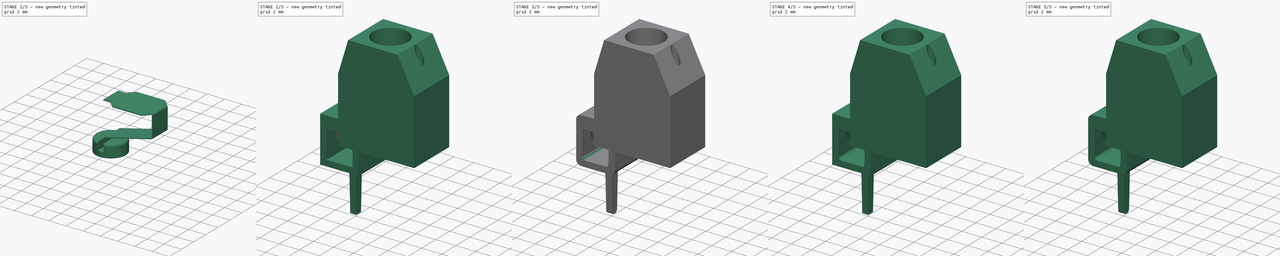
[diagram: build sequence overview — one tinted view per stage of 5, left to right]
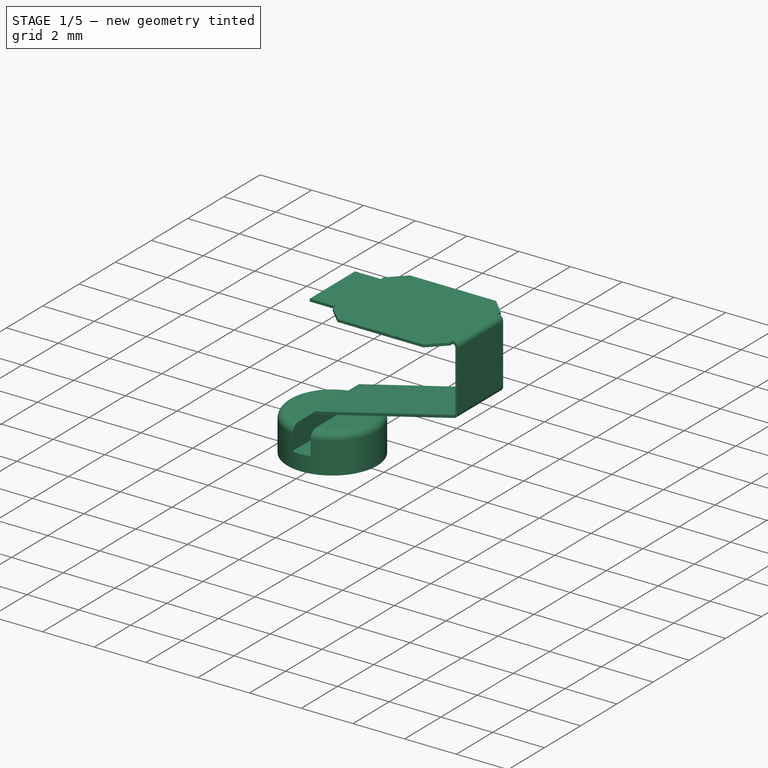
[diagram: stage 1 of 5 — iso view after this stage's code; geometry added in this stage tinted green]
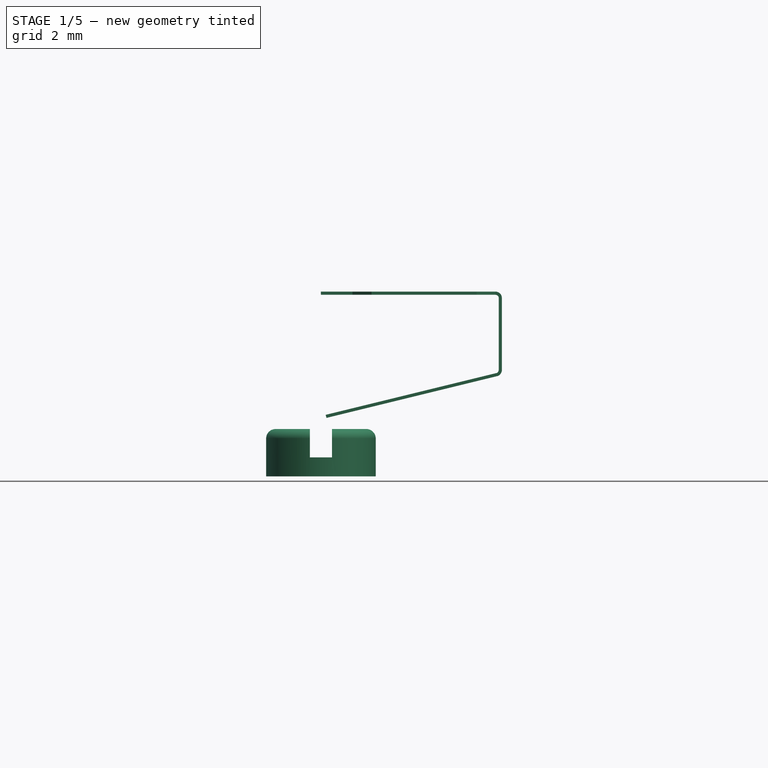
[diagram: stage 1 of 5 — front view after this stage's code; geometry added in this stage tinted green]
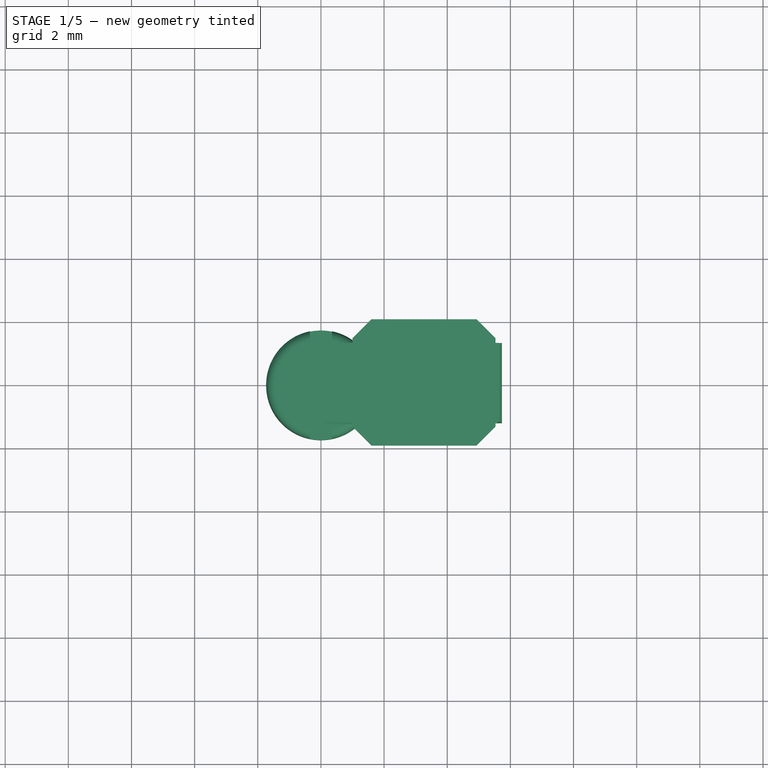
[diagram: stage 1 of 5 — top view after this stage's code; geometry added in this stage tinted green]
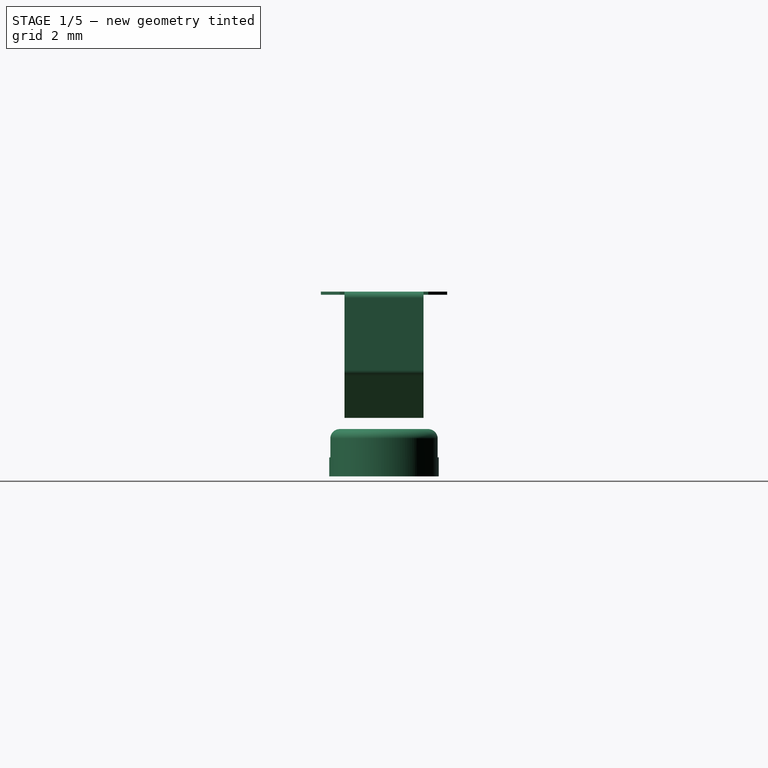
[diagram: stage 1 of 5 — right view after this stage's code; geometry added in this stage tinted green]
FCSTD DOCUMENT  (FreeCAD 0.18.4R)
Label: terminal block 2 pin
License: All rights reserved
LicenseURL: http://en.wikipedia.org/wiki/All_rights_reserved
objects: Sketcher::SketchObject×18, PartDesign::Pad×8, PartDesign::Pocket×8, PartDesign::Fillet×8, PartDesign::Body×6, Part::FeaturePython×6, App::Part×5, PartDesign::Draft×2, Part::Chamfer×2
note: 74 computed .brp shape members not serialized (recipe doc carries the construction recipe); baked Part::Feature solids carry a one-line shape summary decoded from their .brp

FEATURE [PartDesign::Body] Body005  label="Leg001"
  Group = -> [Sketch015,Pad004,Sketch018,Pad005,Draft001,Fillet004,Fillet005,Fillet006]
  Origin = -> Origin008
  Placement = pos=(3.2,-1e-15,3.3) rot=(0,0,-1;1.5708rad)
  Tip = -> Fillet006
FEATURE [Part::FeaturePython] BaseBend001  label="Spring002"  # WARN: FeaturePython — macro-defined, semantics opaque (R4)
  BendSide = 2
  BendSketch = -> Sketch012
  Placement = pos=(0,-1.25,5.8) rot=(0,0,1;0rad)
  length = 2.5
  radius = 0.1
  thickness = 0.1
FEATURE [Part::FeaturePython] Extend003  # WARN: FeaturePython — macro-defined, semantics opaque (R4)
  baseObject = -> BaseBend001 [Edge42]
  gap1 = 1
  gap2 = 0
  length = 0.75
FEATURE [Part::FeaturePython] Extend002  # WARN: FeaturePython — macro-defined, semantics opaque (R4)
  baseObject = -> Extend003 [Edge21]
  gap1 = 1
  gap2 = 0
  length = 0.75
FEATURE [Part::Chamfer] Chamfer001
  Base = -> Extend002
  Edges = 4 edges r=0.6: [Edge2,Edge8,Edge39,Edge45]
FEATURE [App::Part] Part004
  Group = -> [Sketch012,BaseBend001,Extend003,Extend002,Chamfer001]
  Origin = -> Origin011
  Placement = pos=(6,-7e-16,0) rot=(0,0,1;3.14159rad)
FEATURE [PartDesign::Pad] Pad007
  Length = 1.5
  Length2 = 100
  Profile = -> Sketch016
  Refine = true
  Type = 0
FEATURE [Sketcher::SketchObject] Sketch017
  MapMode = 5
  Placement = pos=(0,0,1.5) rot=(0,0,1;0rad)
  Support = -> [Pad007]
  sketch-geometry (4):
    g0: LineSegment StartX=-0.35 StartY=2 StartZ=0 EndX=0.35 EndY=2 EndZ=0
    g1: LineSegment StartX=0.35 StartY=2 StartZ=0 EndX=0.35 EndY=-2 EndZ=0
    g2: LineSegment StartX=0.35 StartY=-2 StartZ=0 EndX=-0.35 EndY=-2 EndZ=0
    g3: LineSegment StartX=-0.35 StartY=-2 StartZ=0 EndX=-0.35 EndY=2 EndZ=0
  constraints (11):
    c: Coincident(g0,g1)
    c: Coincident(g1,g2)
    c: Coincident(g2,g3)
    c: Coincident(g3,g0)
    c: Horizontal(g0)
    c: Horizontal(g2)
    c: Vertical(g1)
    c: Vertical(g3)
    c: Symmetric(g1,g0,g-1)
    c: DistanceX(g0,g0) = 0.7
    c: DistanceY(g1,g1) = 4
FEATURE [PartDesign::Pocket] Pocket007
  BaseFeature = -> Pad007
  Length = 0.9
  Length2 = 100
  Profile = -> Sketch017
  Refine = true
  Type = 0
FEATURE [PartDesign::Fillet] Fillet007
  Base = -> Pocket007 [Edge3,Edge7]
  BaseFeature = -> Pocket007
  Radius = 0.3
FEATURE [PartDesign::Body] Body006  label="Cap001"
  Group = -> [Sketch016,Pad007,Sketch017,Pocket007,Fillet007]
  Origin = -> Origin010
  Placement = pos=(3.47752,0,6.9297) rot=(0,0,1;0rad)
  Tip = -> Fillet007
FEATURE [App::Part] Part003  label="Teminal Block 1 pin001"
  Group = -> [Body004,Body005,Body006,Part004]
  Origin = -> Origin007
  Placement = pos=(1e-15,5,0) rot=(0,0,1;3.14159rad)
FEATURE [App::Part] Part002  label="Terminal block 2 pin"
  Group = -> [Part,Part003]
  Origin = -> Origin006
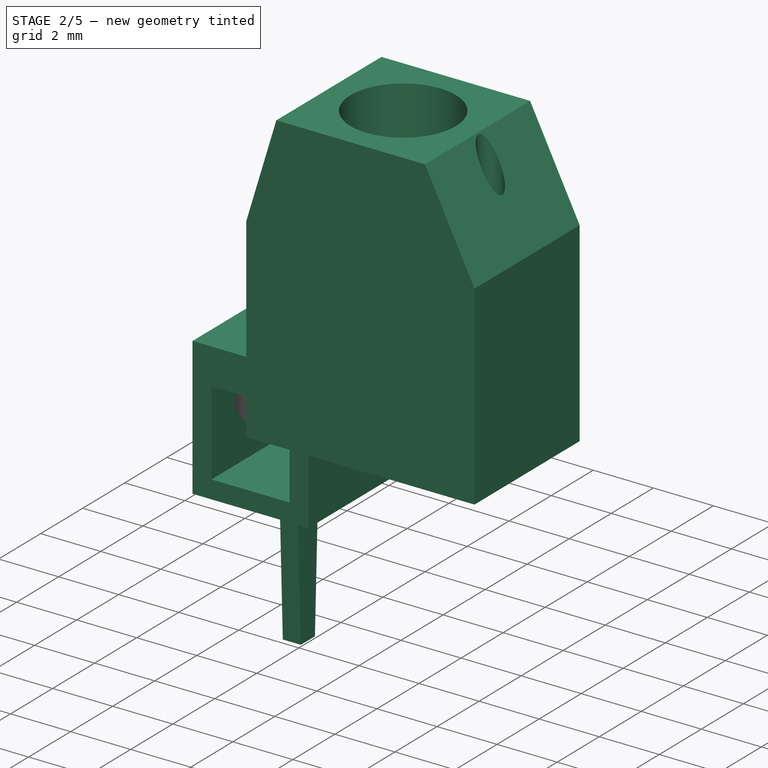
[diagram: stage 2 of 5 — iso view after this stage's code; geometry added in this stage tinted green]
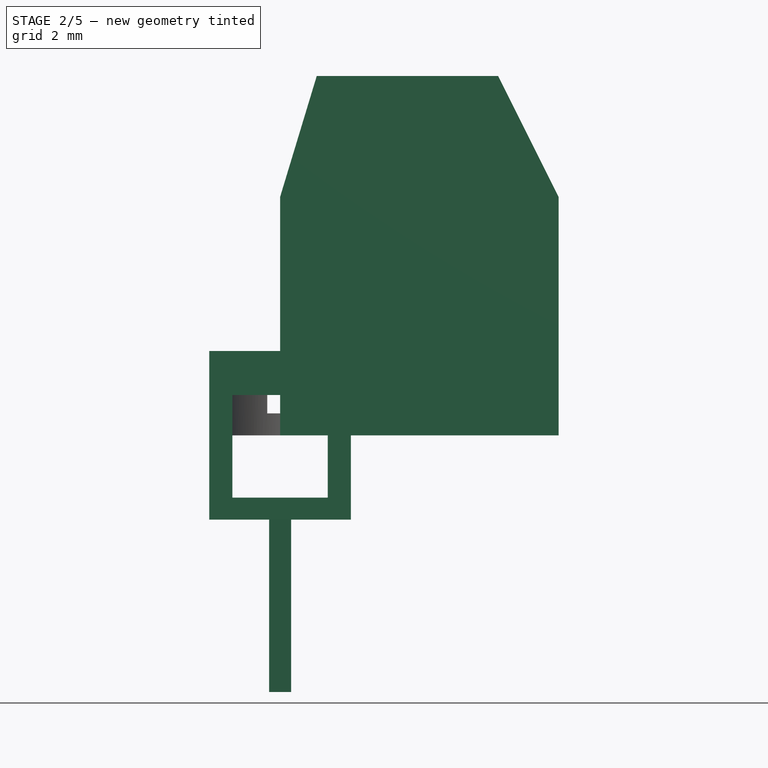
[diagram: stage 2 of 5 — front view after this stage's code; geometry added in this stage tinted green]
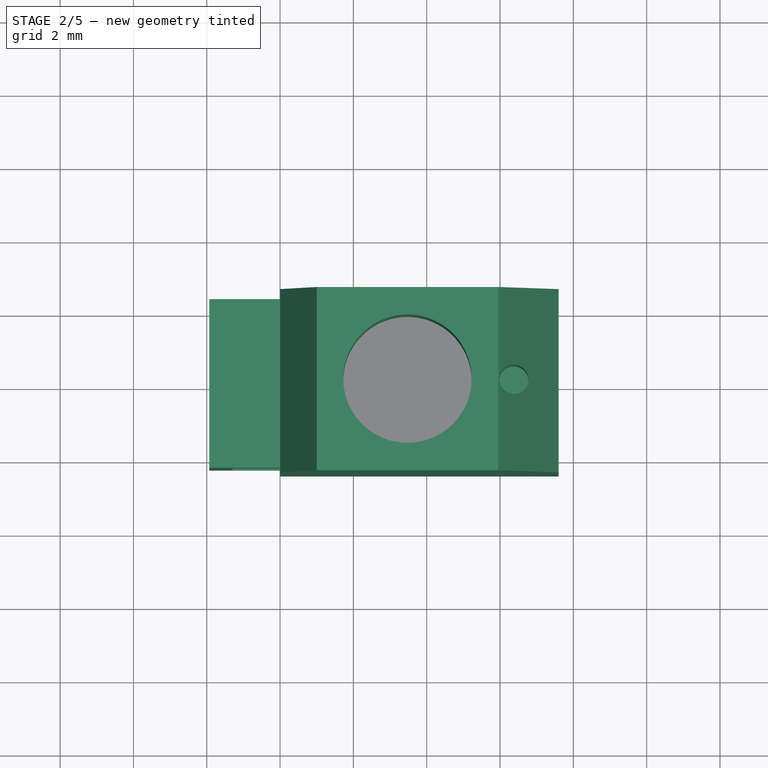
[diagram: stage 2 of 5 — top view after this stage's code; geometry added in this stage tinted green]
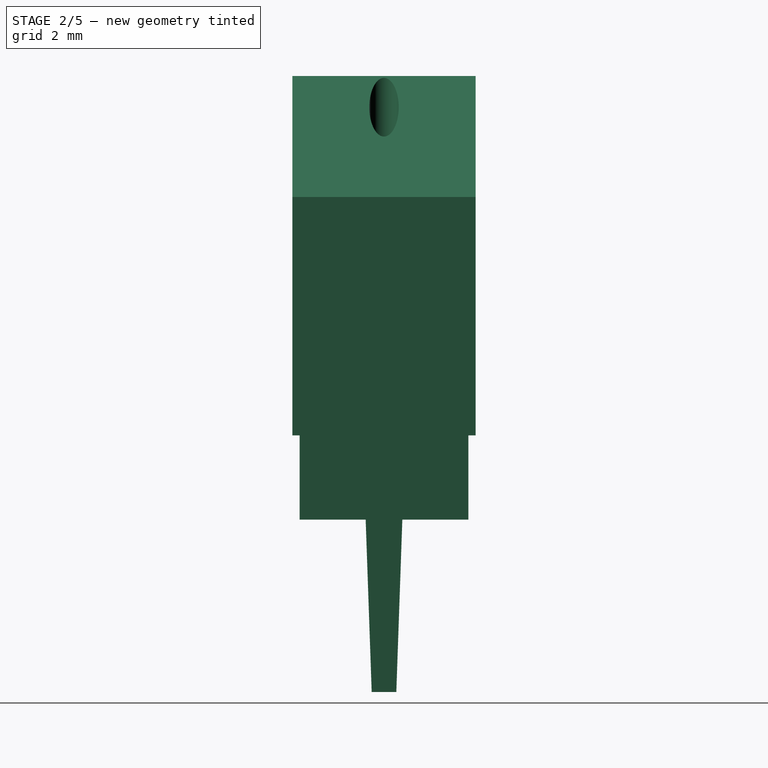
[diagram: stage 2 of 5 — right view after this stage's code; geometry added in this stage tinted green]
FEATURE [PartDesign::Body] Body003  label="Cap"
  Group = -> [Sketch008,Pad003,Sketch009,Pocket003,Fillet003]
  Origin = -> Origin004
  Placement = pos=(3.47752,0,6.9297) rot=(0,0,1;0rad)
  Tip = -> Fillet003
FEATURE [App::Part] Part  label="Teminal Block 1 pin"
  Group = -> [Body,Body001,Body003,Part001]
  Origin = -> Origin
  Placement = pos=(0,0,0) rot=(0,0,1;3.14159rad)
FEATURE [Sketcher::SketchObject] Sketch012
  MapMode = 5
  Placement = pos=(0,0,0) rot=(1,0,0;1.5708rad)
  sketch-geometry (3):
    g0: LineSegment StartX=0 StartY=0 StartZ=0 EndX=5.68 EndY=0 EndZ=0
    g1: LineSegment StartX=5.68 StartY=0 StartZ=0 EndX=5.68 EndY=-2.55 EndZ=0
    g2: LineSegment StartX=5.68 StartY=-2.55 StartZ=0 EndX=0.162763 EndY=-3.9 EndZ=0
  constraints (9):
    c: Coincident(g0,g-1)
    c: PointOnObject(g0,g-1)
    c: Coincident(g0,g1)
    c: Vertical(g1)
    c: Coincident(g1,g2)
    c: DistanceX(g0,g0) = 5.68
    c: DistanceY(g1,g1) = 2.55
    c: Distance(g2) = 5.68
    c: DistanceY(g2,g0) = 3.9
FEATURE [Sketcher::SketchObject] Sketch013
  MapMode = 5
  Placement = pos=(0,0,0) rot=(1,0,0;1.5708rad)
  Support = -> [XZ_Plane008]
  sketch-geometry (6):
    g0: LineSegment StartX=0 StartY=0 StartZ=0 EndX=7.6 EndY=0 EndZ=0
    g1: LineSegment StartX=7.6 StartY=0 StartZ=0 EndX=7.6 EndY=6.5 EndZ=0
    g2: LineSegment StartX=0 StartY=6.5 StartZ=0 EndX=0 EndY=0 EndZ=0
    g3: LineSegment StartX=7.6 StartY=6.5 StartZ=0 EndX=5.95 EndY=9.8 EndZ=0
    g4: LineSegment StartX=5.95 StartY=9.8 StartZ=0 EndX=1 EndY=9.8 EndZ=0
    g5: LineSegment StartX=1 StartY=9.8 StartZ=0 EndX=0 EndY=6.5 EndZ=0
  constraints (17):
    c: Coincident(g0,g1)
    c: Coincident(g2,g0)
    c: Horizontal(g0)
    c: Vertical(g1)
    c: Vertical(g2)
    c: Coincident(g0,g-1)
    c: DistanceX(g0,g0) = 7.6
    c: Coincident(g1,g3)
    c: Coincident(g3,g4)
    c: Coincident(g4,g5)
    c: Coincident(g5,g2)
    c: Horizontal(g4)
    c: Equal(g2,g1)
    c: DistanceY(g2,g2) = 6.5
    c: DistanceY(g2,g4) = 3.3
    c: DistanceX(g4,g4) = 4.95
    c: DistanceX(g2,g4) = 1
FEATURE [PartDesign::Pad] Pad006
  Length = 5
  Length2 = 100
  Midplane = true
  Placement = pos=(0,0,0) rot=(1,0,0;1.5708rad)
  Profile = -> Sketch013
  Refine = true
  Type = 0
FEATURE [Sketcher::SketchObject] Sketch014
  MapMode = 5
  Placement = pos=(0,0,0) rot=(0.707107,0,-0.707107;3.14159rad)
  Support = -> [Pad006]
  sketch-geometry (4):
    g0: LineSegment StartX=-1 StartY=0.5 StartZ=0 EndX=0 EndY=0.5 EndZ=0
    g1: LineSegment StartX=0 StartY=0.5 StartZ=0 EndX=0 EndY=-0.5 EndZ=0
    g2: LineSegment StartX=0 StartY=-0.5 StartZ=0 EndX=-1 EndY=-0.5 EndZ=0
    g3: LineSegment StartX=-1 StartY=-0.5 StartZ=0 EndX=-1 EndY=0.5 EndZ=0
  constraints (11):
    c: Coincident(g0,g1)
    c: Coincident(g1,g2)
    c: Coincident(g2,g3)
    c: Coincident(g3,g0)
    c: Horizontal(g0)
    c: Horizontal(g2)
    c: Vertical(g1)
    c: Vertical(g3)
    c: Symmetric(g0,g1,g-1)
    c: DistanceY(g1,g1) = 1
    c: DistanceX(g0,g0) = 1
FEATURE [PartDesign::Pocket] Pocket004
  BaseFeature = -> Pad006
  Length = 3.75
  Length2 = 100
  Placement = pos=(0,0,0) rot=(1,0,0;1.5708rad)
  Profile = -> Sketch014
  Refine = true
  Type = 0
FEATURE [Sketcher::SketchObject] Sketch010
  ExternalGeometry = -> [Pocket004]
  MapMode = 5
  Placement = pos=(0,0,0) rot=(0.707107,0,-0.707107;3.14159rad)
  Support = -> [Pocket004]
  sketch-geometry (4):
    g0: LineSegment StartX=-5.87 StartY=2 StartZ=0 EndX=-1 EndY=2 EndZ=0
    g1: LineSegment StartX=-1 StartY=2 StartZ=0 EndX=-1 EndY=-2 EndZ=0
    g2: LineSegment StartX=-1 StartY=-2 StartZ=0 EndX=-5.87 EndY=-2 EndZ=0
    g3: LineSegment StartX=-5.87 StartY=-2 StartZ=0 EndX=-5.87 EndY=2 EndZ=0
  constraints (11):
    c: Coincident(g0,g1)
    c: Coincident(g1,g2)
    c: Coincident(g2,g3)
    c: Coincident(g3,g0)
    c: Horizontal(g0)
    c: Horizontal(g2)
    c: Vertical(g3)
    c: Vertical(g-3,g0)
    c: Symmetric(g1,g0,g-1)
    c: DistanceY(g3,g3) = 4
    c: DistanceX(g0,g0) = 4.87
FEATURE [PartDesign::Pocket] Pocket005
  BaseFeature = -> Pocket004
  Length = 6.8
  Length2 = 100
  Placement = pos=(0,0,0) rot=(1,0,0;1.5708rad)
  Profile = -> Sketch010
  Refine = true
  Type = 0
FEATURE [Sketcher::SketchObject] Sketch011
  ExternalGeometry = -> [Pocket005]
  MapMode = 5
  Placement = pos=(0,4.3e-15,9.8) rot=(0,0,1;3.14159rad)
  Support = -> [Pocket005]
  sketch-geometry (2):
    g0: Circle CenterX=-3.475 CenterY=0 CenterZ=0 NormalX=0 NormalY=0 NormalZ=1 AngleXU=0 Radius=1.75
    g1: Circle CenterX=-6.375 CenterY=0 CenterZ=0 NormalX=0 NormalY=0 NormalZ=1 AngleXU=0 Radius=0.4
  constraints (5):
    c: Radius(g0) = 1.75
    c: Symmetric(g-3,g-4,g0)
    c: PointOnObject(g1,g-1)
    c: DistanceX(g1,g0) = 2.9
    c: Radius(g1) = 0.4
FEATURE [PartDesign::Pocket] Pocket006
  BaseFeature = -> Pocket005
  Length = 5
  Length2 = 100
  Placement = pos=(0,0,0) rot=(1,0,0;1.5708rad)
  Profile = -> Sketch011
  Refine = true
  Type = 0
FEATURE [PartDesign::Body] Body004  label="Case001"
  Group = -> [Sketch013,Pad006,Sketch014,Pocket004,Sketch010,Pocket005,Sketch011,Pocket006]
  Origin = -> Origin009
  Tip = -> Pocket006
FEATURE [Sketcher::SketchObject] Sketch015
  MapMode = 5
  Placement = pos=(0,0,0) rot=(1,0,0;1.5708rad)
  Support = -> [XZ_Plane007]
  sketch-geometry (8):
    g0: LineSegment StartX=-1.3 StartY=1.1 StartZ=0 EndX=1.3 EndY=1.1 EndZ=0
    g1: LineSegment StartX=1.3 StartY=1.1 StartZ=0 EndX=1.3 EndY=-1.7 EndZ=0
    g2: LineSegment StartX=1.3 StartY=-1.7 StartZ=0 EndX=-1.3 EndY=-1.7 EndZ=0
    g3: LineSegment StartX=-1.3 StartY=-1.7 StartZ=0 EndX=-1.3 EndY=1.1 EndZ=0
    g4: LineSegment StartX=-1.93 StartY=2.3 StartZ=0 EndX=1.93 EndY=2.3 EndZ=0
    g5: LineSegment StartX=1.93 StartY=2.3 StartZ=0 EndX=1.93 EndY=-2.3 EndZ=0
    g6: LineSegment StartX=1.93 StartY=-2.3 StartZ=0 EndX=-1.93 EndY=-2.3 EndZ=0
    g7: LineSegment StartX=-1.93 StartY=-2.3 StartZ=0 EndX=-1.93 EndY=2.3 EndZ=0
  constraints (22):
    c: Coincident(g0,g1)
    c: Coincident(g1,g2)
    c: Coincident(g2,g3)
    c: Coincident(g3,g0)
    c: Horizontal(g0)
    c: Vertical(g1)
    c: Vertical(g3)
    c: Coincident(g4,g5)
    c: Coincident(g5,g6)
    c: Coincident(g6,g7)
    c: Coincident(g7,g4)
    c: Horizontal(g4)
    c: Horizontal(g6)
    c: Vertical(g5)
    c: Vertical(g7)
    c: Symmetric(g4,g5,g-1)
    c: DistanceY(g5,g5) = 4.6
    c: DistanceX(g4,g4) = 3.86
    c: DistanceY(g5,g1) = 0.6
    c: DistanceX(g2,g2) = 2.6
    c: Symmetric(g1,g2,g-2)
    c: DistanceY(g3,g3) = 2.8
FEATURE [PartDesign::Pad] Pad004
  Length = 4.6
  Length2 = 100
  Midplane = true
  Placement = pos=(0,0,0) rot=(1,0,0;1.5708rad)
  Profile = -> Sketch015
  Refine = true
  Type = 0
FEATURE [Sketcher::SketchObject] Sketch016
  MapMode = 5
  Support = -> [XY_Plane010]
  sketch-geometry (1):
    g0: Circle CenterX=0 CenterY=0 CenterZ=0 NormalX=0 NormalY=0 NormalZ=1 AngleXU=0 Radius=1.735
  constraints (2):
    c: Coincident(g0,g-1)
    c: Radius(g0) = 1.735
FEATURE [Sketcher::SketchObject] Sketch018
  MapMode = 5
  Placement = pos=(0,-1e-15,-2.3) rot=(1,0,0;3.14159rad)
  Support = -> [Pad004]
  sketch-geometry (4):
    g0: LineSegment StartX=-0.3 StartY=0.5 StartZ=0 EndX=0.3 EndY=0.5 EndZ=0
    g1: LineSegment StartX=0.3 StartY=0.5 StartZ=0 EndX=0.3 EndY=-0.5 EndZ=0
    g2: LineSegment StartX=0.3 StartY=-0.5 StartZ=0 EndX=-0.3 EndY=-0.5 EndZ=0
    g3: LineSegment StartX=-0.3 StartY=-0.5 StartZ=0 EndX=-0.3 EndY=0.5 EndZ=0
  constraints (11):
    c: Coincident(g0,g1)
    c: Coincident(g1,g2)
    c: Coincident(g2,g3)
    c: Coincident(g3,g0)
    c: Horizontal(g0)
    c: Horizontal(g2)
    c: Vertical(g1)
    c: Vertical(g3)
    c: Symmetric(g1,g0,g-1)
    c: DistanceY(g1,g1) = 1
    c: DistanceX(g0,g0) = 0.6
FEATURE [PartDesign::Pad] Pad005
  BaseFeature = -> Pad004
  Length = 4.7
  Length2 = 100
  Placement = pos=(0,0,0) rot=(1,0,0;1.5708rad)
  Profile = -> Sketch018
  Refine = true
  Type = 0
FEATURE [PartDesign::Draft] Draft001
  Angle = 2
  Base = -> Pad005 [Face14,Face12]
  BaseFeature = -> Pad005
  NeutralPlane = -> Pad005 [Face6]
  Placement = pos=(0,0,0) rot=(1,0,0;1.5708rad)
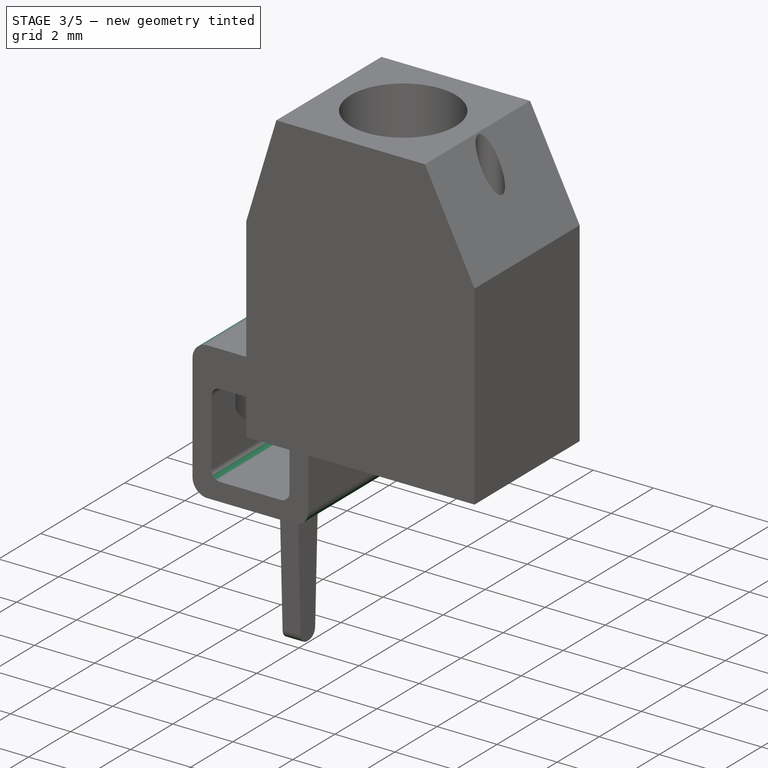
[diagram: stage 3 of 5 — iso view after this stage's code; geometry added in this stage tinted green]
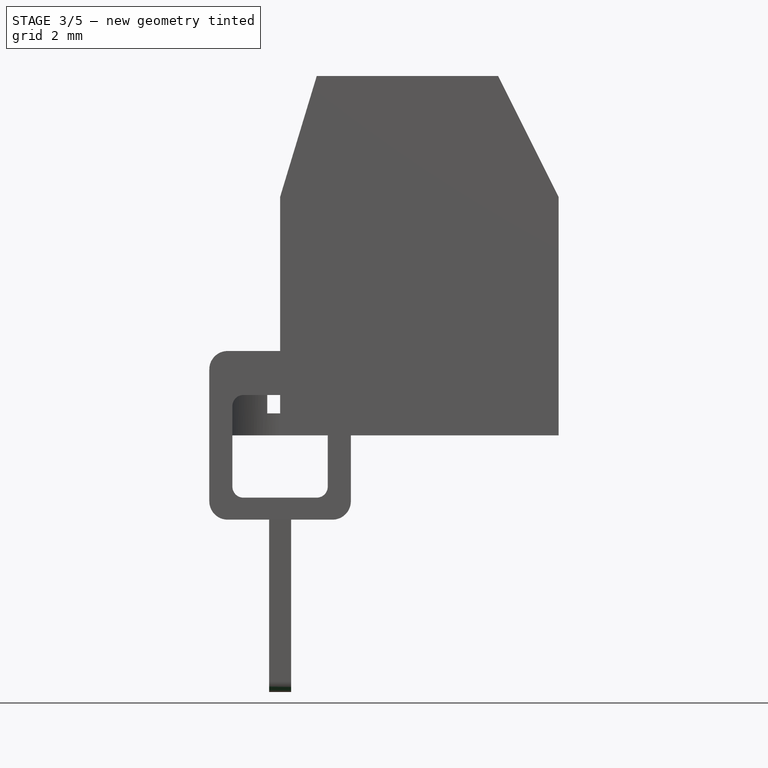
[diagram: stage 3 of 5 — front view after this stage's code; geometry added in this stage tinted green]
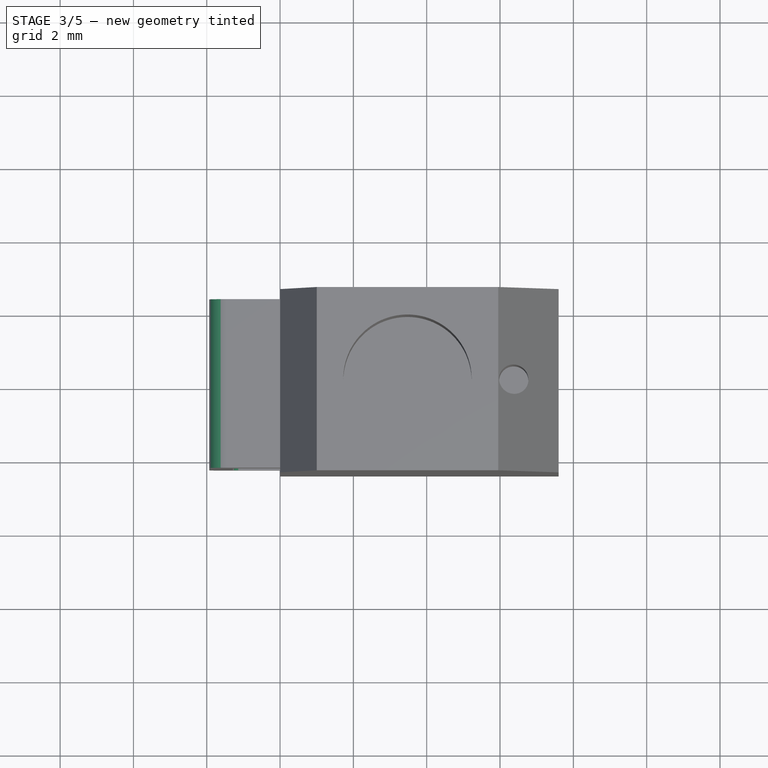
[diagram: stage 3 of 5 — top view after this stage's code; geometry added in this stage tinted green]
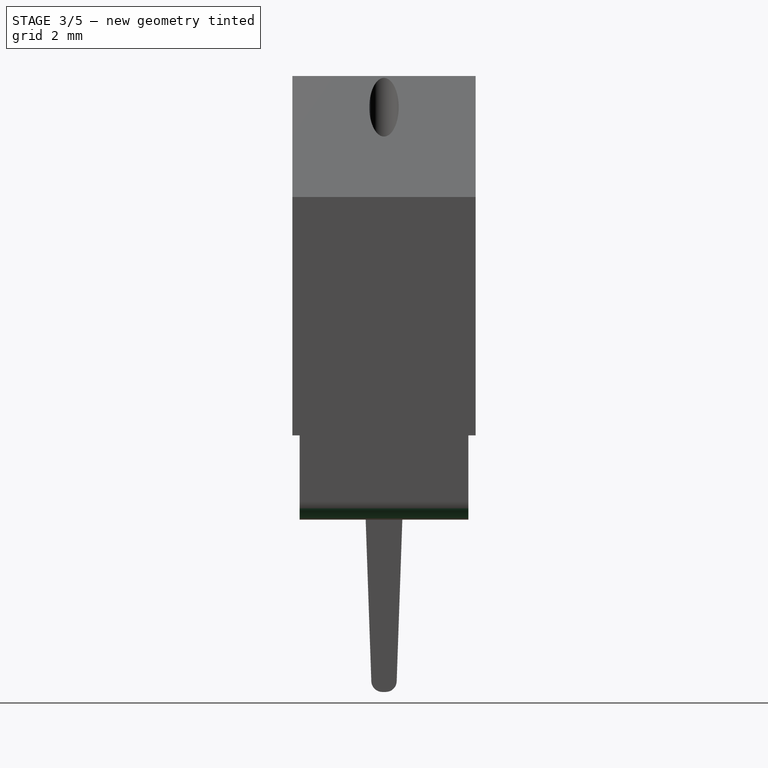
[diagram: stage 3 of 5 — right view after this stage's code; geometry added in this stage tinted green]
FEATURE [App::Part] Part001
  Group = -> [Sketch007,BaseBend,Extend,Extend001,Chamfer]
  Origin = -> Origin005
  Placement = pos=(6,-7e-16,0) rot=(0,0,1;3.14159rad)
FEATURE [Sketcher::SketchObject] Sketch008
  MapMode = 5
  Support = -> [XY_Plane004]
  sketch-geometry (1):
    g0: Circle CenterX=0 CenterY=0 CenterZ=0 NormalX=0 NormalY=0 NormalZ=1 AngleXU=0 Radius=1.735
  constraints (2):
    c: Coincident(g0,g-1)
    c: Radius(g0) = 1.735
FEATURE [PartDesign::Pad] Pad003
  Length = 1.5
  Length2 = 100
  Profile = -> Sketch008
  Refine = true
  Type = 0
FEATURE [Sketcher::SketchObject] Sketch009
  MapMode = 5
  Placement = pos=(0,0,1.5) rot=(0,0,1;0rad)
  Support = -> [Pad003]
  sketch-geometry (4):
    g0: LineSegment StartX=-0.35 StartY=2 StartZ=0 EndX=0.35 EndY=2 EndZ=0
    g1: LineSegment StartX=0.35 StartY=2 StartZ=0 EndX=0.35 EndY=-2 EndZ=0
    g2: LineSegment StartX=0.35 StartY=-2 StartZ=0 EndX=-0.35 EndY=-2 EndZ=0
    g3: LineSegment StartX=-0.35 StartY=-2 StartZ=0 EndX=-0.35 EndY=2 EndZ=0
  constraints (11):
    c: Coincident(g0,g1)
    c: Coincident(g1,g2)
    c: Coincident(g2,g3)
    c: Coincident(g3,g0)
    c: Horizontal(g0)
    c: Horizontal(g2)
    c: Vertical(g1)
    c: Vertical(g3)
    c: Symmetric(g1,g0,g-1)
    c: DistanceX(g0,g0) = 0.7
    c: DistanceY(g1,g1) = 4
FEATURE [PartDesign::Pocket] Pocket003
  BaseFeature = -> Pad003
  Length = 0.9
  Length2 = 100
  Profile = -> Sketch009
  Refine = true
  Type = 0
FEATURE [PartDesign::Fillet] Fillet003
  Base = -> Pocket003 [Edge3,Edge7]
  BaseFeature = -> Pocket003
  Radius = 0.3
FEATURE [PartDesign::Fillet] Fillet004
  Base = -> Draft001 [Edge36,Edge33]
  BaseFeature = -> Draft001
  Placement = pos=(0,0,0) rot=(1,0,0;1.5708rad)
  Radius = 0.3
FEATURE [PartDesign::Fillet] Fillet005
  Base = -> Fillet004 [Edge12,Edge23,Edge38,Edge15]
  BaseFeature = -> Fillet004
  Placement = pos=(0,0,0) rot=(1,0,0;1.5708rad)
  Radius = 0.5
FEATURE [PartDesign::Fillet] Fillet006
  Base = -> Fillet005 [Edge51,Edge52,Edge50,Edge49]
  BaseFeature = -> Fillet005
  Placement = pos=(0,0,0) rot=(1,0,0;1.5708rad)
  Radius = 0.3
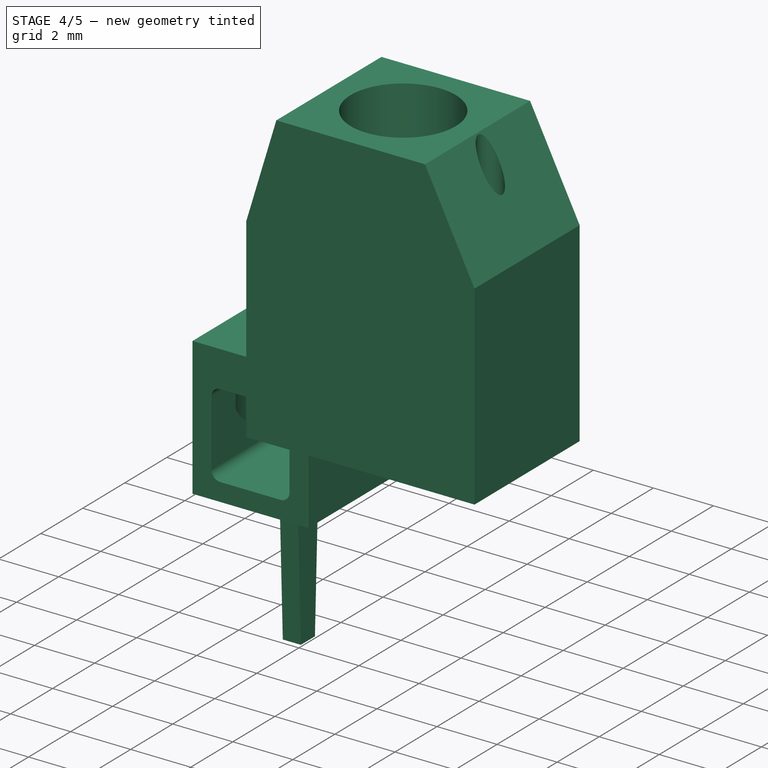
[diagram: stage 4 of 5 — iso view after this stage's code; geometry added in this stage tinted green]
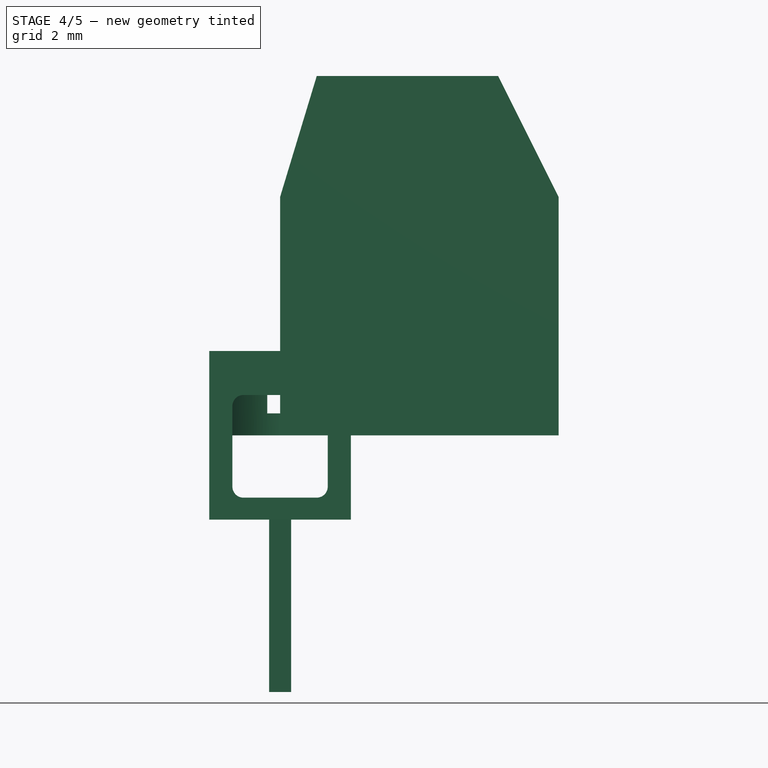
[diagram: stage 4 of 5 — front view after this stage's code; geometry added in this stage tinted green]
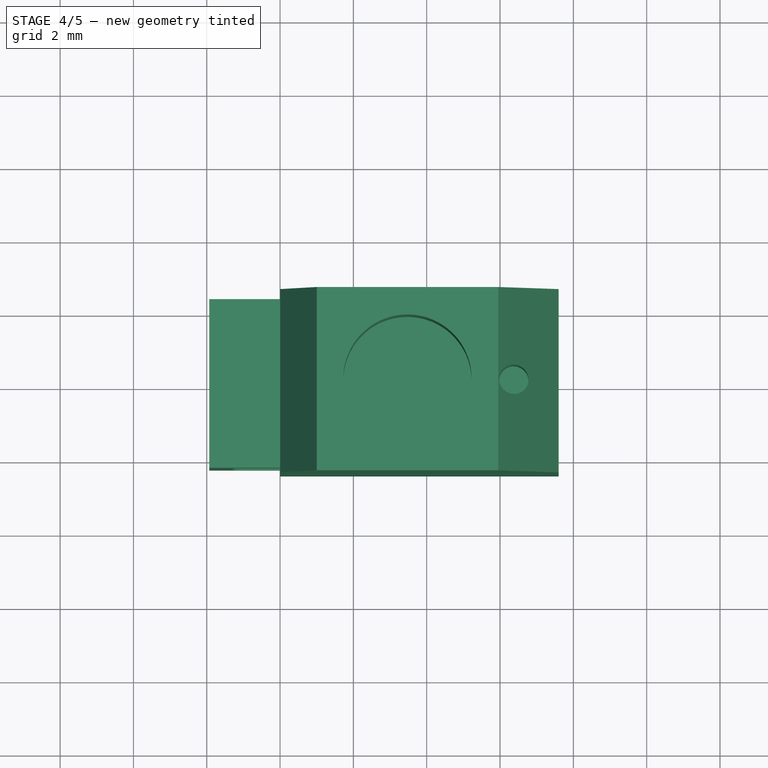
[diagram: stage 4 of 5 — top view after this stage's code; geometry added in this stage tinted green]
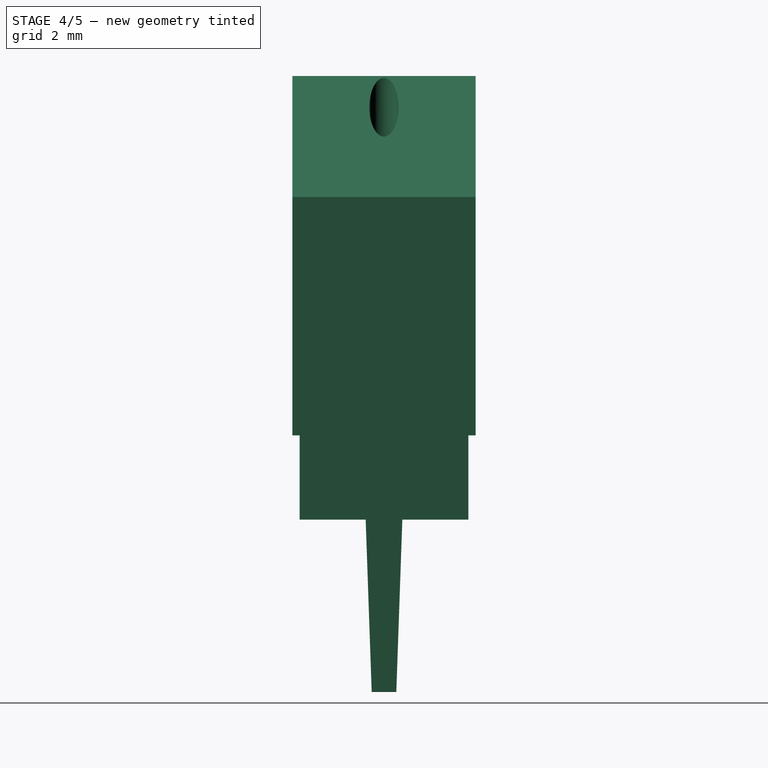
[diagram: stage 4 of 5 — right view after this stage's code; geometry added in this stage tinted green]
FEATURE [PartDesign::Body] Body  label="Case"
  Group = -> [Sketch,Pad,Sketch002,Pocket,Sketch003,Pocket001,Sketch004,Pocket002]
  Origin = -> Origin001
  Tip = -> Pocket002
FEATURE [Sketcher::SketchObject] Sketch005
  MapMode = 5
  Placement = pos=(0,0,0) rot=(1,0,0;1.5708rad)
  Support = -> [XZ_Plane002]
  sketch-geometry (8):
    g0: LineSegment StartX=-1.3 StartY=1.1 StartZ=0 EndX=1.3 EndY=1.1 EndZ=0
    g1: LineSegment StartX=1.3 StartY=1.1 StartZ=0 EndX=1.3 EndY=-1.7 EndZ=0
    g2: LineSegment StartX=1.3 StartY=-1.7 StartZ=0 EndX=-1.3 EndY=-1.7 EndZ=0
    g3: LineSegment StartX=-1.3 StartY=-1.7 StartZ=0 EndX=-1.3 EndY=1.1 EndZ=0
    g4: LineSegment StartX=-1.93 StartY=2.3 StartZ=0 EndX=1.93 EndY=2.3 EndZ=0
    g5: LineSegment StartX=1.93 StartY=2.3 StartZ=0 EndX=1.93 EndY=-2.3 EndZ=0
    g6: LineSegment StartX=1.93 StartY=-2.3 StartZ=0 EndX=-1.93 EndY=-2.3 EndZ=0
    g7: LineSegment StartX=-1.93 StartY=-2.3 StartZ=0 EndX=-1.93 EndY=2.3 EndZ=0
  constraints (22):
    c: Coincident(g0,g1)
    c: Coincident(g1,g2)
    c: Coincident(g2,g3)
    c: Coincident(g3,g0)
    c: Horizontal(g0)
    c: Vertical(g1)
    c: Vertical(g3)
    c: Coincident(g4,g5)
    c: Coincident(g5,g6)
    c: Coincident(g6,g7)
    c: Coincident(g7,g4)
    c: Horizontal(g4)
    c: Horizontal(g6)
    c: Vertical(g5)
    c: Vertical(g7)
    c: Symmetric(g4,g5,g-1)
    c: DistanceY(g5,g5) = 4.6
    c: DistanceX(g4,g4) = 3.86
    c: DistanceY(g5,g1) = 0.6
    c: DistanceX(g2,g2) = 2.6
    c: Symmetric(g1,g2,g-2)
    c: DistanceY(g3,g3) = 2.8
FEATURE [PartDesign::Pad] Pad001
  Length = 4.6
  Length2 = 100
  Midplane = true
  Placement = pos=(0,0,0) rot=(1,0,0;1.5708rad)
  Profile = -> Sketch005
  Refine = true
  Type = 0
FEATURE [Sketcher::SketchObject] Sketch006
  MapMode = 5
  Placement = pos=(0,-1e-15,-2.3) rot=(1,0,0;3.14159rad)
  Support = -> [Pad001]
  sketch-geometry (4):
    g0: LineSegment StartX=-0.3 StartY=0.5 StartZ=0 EndX=0.3 EndY=0.5 EndZ=0
    g1: LineSegment StartX=0.3 StartY=0.5 StartZ=0 EndX=0.3 EndY=-0.5 EndZ=0
    g2: LineSegment StartX=0.3 StartY=-0.5 StartZ=0 EndX=-0.3 EndY=-0.5 EndZ=0
    g3: LineSegment StartX=-0.3 StartY=-0.5 StartZ=0 EndX=-0.3 EndY=0.5 EndZ=0
  constraints (11):
    c: Coincident(g0,g1)
    c: Coincident(g1,g2)
    c: Coincident(g2,g3)
    c: Coincident(g3,g0)
    c: Horizontal(g0)
    c: Horizontal(g2)
    c: Vertical(g1)
    c: Vertical(g3)
    c: Symmetric(g1,g0,g-1)
    c: DistanceY(g1,g1) = 1
    c: DistanceX(g0,g0) = 0.6
FEATURE [PartDesign::Pad] Pad002
  BaseFeature = -> Pad001
  Length = 4.7
  Length2 = 100
  Placement = pos=(0,0,0) rot=(1,0,0;1.5708rad)
  Profile = -> Sketch006
  Refine = true
  Type = 0
FEATURE [PartDesign::Draft] Draft
  Angle = 2
  Base = -> Pad002 [Face14,Face12]
  BaseFeature = -> Pad002
  NeutralPlane = -> Pad002 [Face6]
  Placement = pos=(0,0,0) rot=(1,0,0;1.5708rad)
FEATURE [PartDesign::Body] Body001  label="Leg"
  Group = -> [Sketch005,Pad001,Sketch006,Pad002,Draft,Fillet,Fillet001,Fillet002]
  Origin = -> Origin002
  Placement = pos=(3.2,-1e-15,3.3) rot=(0,0,-1;1.5708rad)
  Tip = -> Fillet002
FEATURE [Sketcher::SketchObject] Sketch007
  MapMode = 5
  Placement = pos=(0,0,0) rot=(1,0,0;1.5708rad)
  sketch-geometry (3):
    g0: LineSegment StartX=0 StartY=0 StartZ=0 EndX=5.68 EndY=0 EndZ=0
    g1: LineSegment StartX=5.68 StartY=0 StartZ=0 EndX=5.68 EndY=-2.55 EndZ=0
    g2: LineSegment StartX=5.68 StartY=-2.55 StartZ=0 EndX=0.162763 EndY=-3.9 EndZ=0
  constraints (9):
    c: Coincident(g0,g-1)
    c: PointOnObject(g0,g-1)
    c: Coincident(g0,g1)
    c: Vertical(g1)
    c: Coincident(g1,g2)
    c: DistanceX(g0,g0) = 5.68
    c: DistanceY(g1,g1) = 2.55
    c: Distance(g2) = 5.68
    c: DistanceY(g2,g0) = 3.9
FEATURE [Part::FeaturePython] BaseBend  label="Spring001"  # WARN: FeaturePython — macro-defined, semantics opaque (R4)
  BendSide = 2
  BendSketch = -> Sketch007
  Placement = pos=(0,-1.25,5.8) rot=(0,0,1;0rad)
  length = 2.5
  radius = 0.1
  thickness = 0.1
FEATURE [Part::FeaturePython] Extend  # WARN: FeaturePython — macro-defined, semantics opaque (R4)
  baseObject = -> BaseBend [Edge42]
  gap1 = 1
  gap2 = 0
  length = 0.75
FEATURE [Part::FeaturePython] Extend001  # WARN: FeaturePython — macro-defined, semantics opaque (R4)
  baseObject = -> Extend [Edge21]
  gap1 = 1
  gap2 = 0
  length = 0.75
FEATURE [Part::Chamfer] Chamfer
  Base = -> Extend001
  Edges = 4 edges r=0.6: [Edge2,Edge8,Edge39,Edge45]
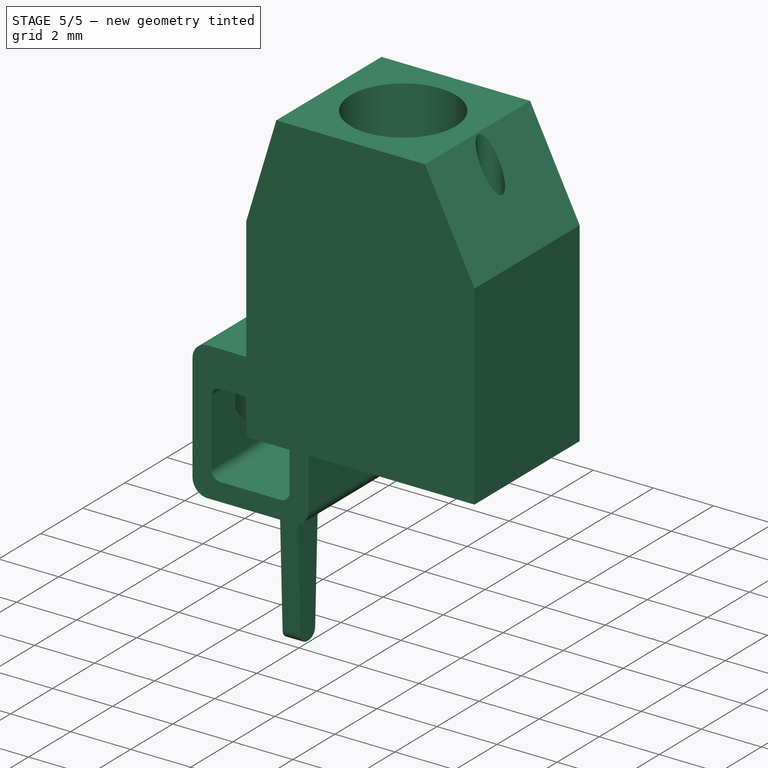
[diagram: stage 5 of 5 — iso view after this stage's code; geometry added in this stage tinted green]
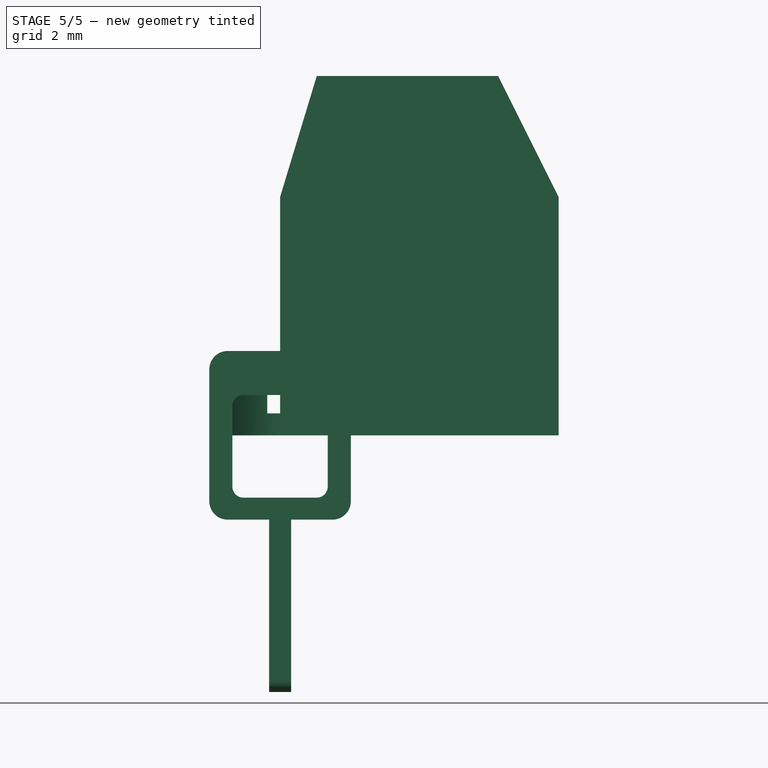
[diagram: stage 5 of 5 — front view after this stage's code; geometry added in this stage tinted green]
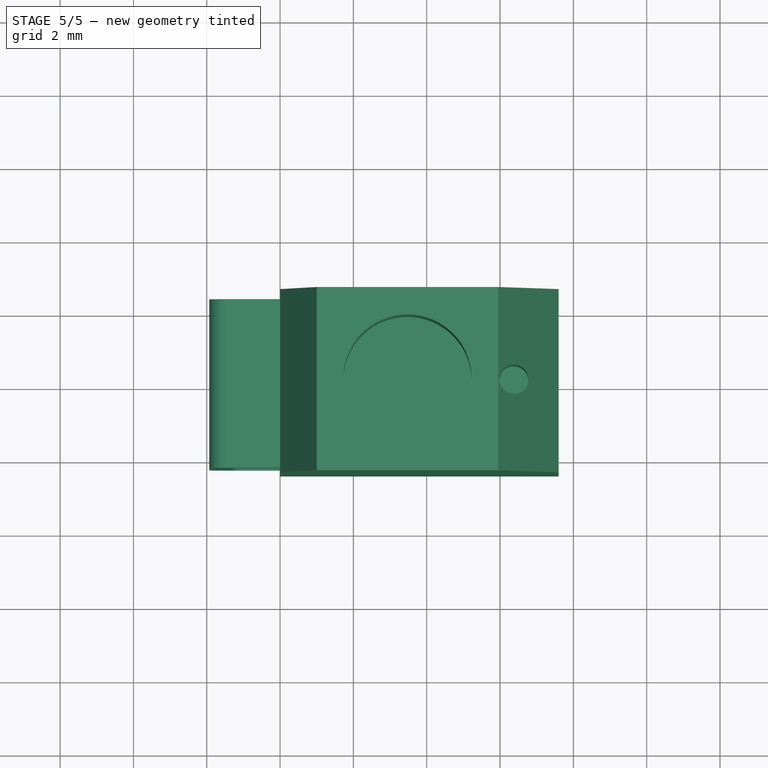
[diagram: stage 5 of 5 — top view after this stage's code; geometry added in this stage tinted green]
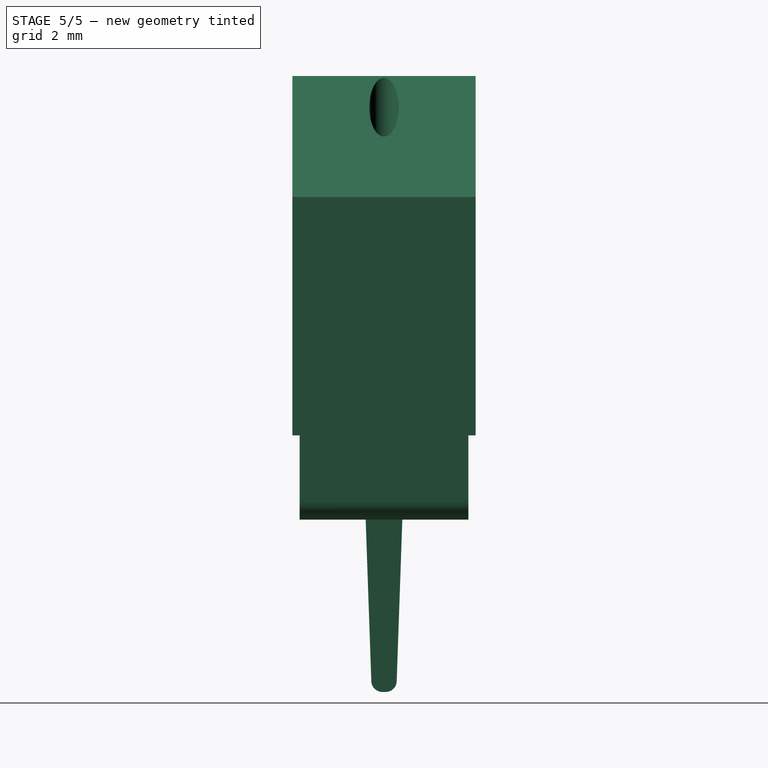
[diagram: stage 5 of 5 — right view after this stage's code; geometry added in this stage tinted green]
FEATURE [Sketcher::SketchObject] Sketch
  MapMode = 5
  Placement = pos=(0,0,0) rot=(1,0,0;1.5708rad)
  Support = -> [XZ_Plane001]
  sketch-geometry (6):
    g0: LineSegment StartX=0 StartY=0 StartZ=0 EndX=7.6 EndY=0 EndZ=0
    g1: LineSegment StartX=7.6 StartY=0 StartZ=0 EndX=7.6 EndY=6.5 EndZ=0
    g2: LineSegment StartX=0 StartY=6.5 StartZ=0 EndX=0 EndY=0 EndZ=0
    g3: LineSegment StartX=7.6 StartY=6.5 StartZ=0 EndX=5.95 EndY=9.8 EndZ=0
    g4: LineSegment StartX=5.95 StartY=9.8 StartZ=0 EndX=1 EndY=9.8 EndZ=0
    g5: LineSegment StartX=1 StartY=9.8 StartZ=0 EndX=0 EndY=6.5 EndZ=0
  constraints (17):
    c: Coincident(g0,g1)
    c: Coincident(g2,g0)
    c: Horizontal(g0)
    c: Vertical(g1)
    c: Vertical(g2)
    c: Coincident(g0,g-1)
    c: DistanceX(g0,g0) = 7.6
    c: Coincident(g1,g3)
    c: Coincident(g3,g4)
    c: Coincident(g4,g5)
    c: Coincident(g5,g2)
    c: Horizontal(g4)
    c: Equal(g2,g1)
    c: DistanceY(g2,g2) = 6.5
    c: DistanceY(g2,g4) = 3.3
    c: DistanceX(g4,g4) = 4.95
    c: DistanceX(g2,g4) = 1
FEATURE [PartDesign::Pad] Pad
  Length = 5
  Length2 = 100
  Midplane = true
  Placement = pos=(0,0,0) rot=(1,0,0;1.5708rad)
  Profile = -> Sketch
  Refine = true
  Type = 0
FEATURE [Sketcher::SketchObject] Sketch002
  MapMode = 5
  Placement = pos=(0,0,0) rot=(0.707107,0,-0.707107;3.14159rad)
  Support = -> [Pad]
  sketch-geometry (4):
    g0: LineSegment StartX=-1 StartY=0.5 StartZ=0 EndX=0 EndY=0.5 EndZ=0
    g1: LineSegment StartX=0 StartY=0.5 StartZ=0 EndX=0 EndY=-0.5 EndZ=0
    g2: LineSegment StartX=0 StartY=-0.5 StartZ=0 EndX=-1 EndY=-0.5 EndZ=0
    g3: LineSegment StartX=-1 StartY=-0.5 StartZ=0 EndX=-1 EndY=0.5 EndZ=0
  constraints (11):
    c: Coincident(g0,g1)
    c: Coincident(g1,g2)
    c: Coincident(g2,g3)
    c: Coincident(g3,g0)
    c: Horizontal(g0)
    c: Horizontal(g2)
    c: Vertical(g1)
    c: Vertical(g3)
    c: Symmetric(g0,g1,g-1)
    c: DistanceY(g1,g1) = 1
    c: DistanceX(g0,g0) = 1
FEATURE [PartDesign::Pocket] Pocket
  BaseFeature = -> Pad
  Length = 3.75
  Length2 = 100
  Placement = pos=(0,0,0) rot=(1,0,0;1.5708rad)
  Profile = -> Sketch002
  Refine = true
  Type = 0
FEATURE [Sketcher::SketchObject] Sketch003
  ExternalGeometry = -> [Pocket]
  MapMode = 5
  Placement = pos=(0,0,0) rot=(0.707107,0,-0.707107;3.14159rad)
  Support = -> [Pocket]
  sketch-geometry (4):
    g0: LineSegment StartX=-5.87 StartY=2 StartZ=0 EndX=-1 EndY=2 EndZ=0
    g1: LineSegment StartX=-1 StartY=2 StartZ=0 EndX=-1 EndY=-2 EndZ=0
    g2: LineSegment StartX=-1 StartY=-2 StartZ=0 EndX=-5.87 EndY=-2 EndZ=0
    g3: LineSegment StartX=-5.87 StartY=-2 StartZ=0 EndX=-5.87 EndY=2 EndZ=0
  constraints (11):
    c: Coincident(g0,g1)
    c: Coincident(g1,g2)
    c: Coincident(g2,g3)
    c: Coincident(g3,g0)
    c: Horizontal(g0)
    c: Horizontal(g2)
    c: Vertical(g3)
    c: Vertical(g-3,g0)
    c: Symmetric(g1,g0,g-1)
    c: DistanceY(g3,g3) = 4
    c: DistanceX(g0,g0) = 4.87
FEATURE [PartDesign::Pocket] Pocket001
  BaseFeature = -> Pocket
  Length = 6.8
  Length2 = 100
  Placement = pos=(0,0,0) rot=(1,0,0;1.5708rad)
  Profile = -> Sketch003
  Refine = true
  Type = 0
FEATURE [Sketcher::SketchObject] Sketch004
  ExternalGeometry = -> [Pocket001]
  MapMode = 5
  Placement = pos=(0,4.3e-15,9.8) rot=(0,0,1;3.14159rad)
  Support = -> [Pocket001]
  sketch-geometry (2):
    g0: Circle CenterX=-3.475 CenterY=0 CenterZ=0 NormalX=0 NormalY=0 NormalZ=1 AngleXU=0 Radius=1.75
    g1: Circle CenterX=-6.375 CenterY=0 CenterZ=0 NormalX=0 NormalY=0 NormalZ=1 AngleXU=0 Radius=0.4
  constraints (5):
    c: Radius(g0) = 1.75
    c: Symmetric(g-3,g-4,g0)
    c: PointOnObject(g1,g-1)
    c: DistanceX(g1,g0) = 2.9
    c: Radius(g1) = 0.4
FEATURE [PartDesign::Pocket] Pocket002
  BaseFeature = -> Pocket001
  Length = 5
  Length2 = 100
  Placement = pos=(0,0,0) rot=(1,0,0;1.5708rad)
  Profile = -> Sketch004
  Refine = true
  Type = 0
FEATURE [PartDesign::Fillet] Fillet
  Base = -> Draft [Edge36,Edge33]
  BaseFeature = -> Draft
  Placement = pos=(0,0,0) rot=(1,0,0;1.5708rad)
  Radius = 0.3
FEATURE [PartDesign::Fillet] Fillet001
  Base = -> Fillet [Edge12,Edge23,Edge38,Edge15]
  BaseFeature = -> Fillet
  Placement = pos=(0,0,0) rot=(1,0,0;1.5708rad)
  Radius = 0.5
FEATURE [PartDesign::Fillet] Fillet002
  Base = -> Fillet001 [Edge51,Edge52,Edge50,Edge49]
  BaseFeature = -> Fillet001
  Placement = pos=(0,0,0) rot=(1,0,0;1.5708rad)
  Radius = 0.3
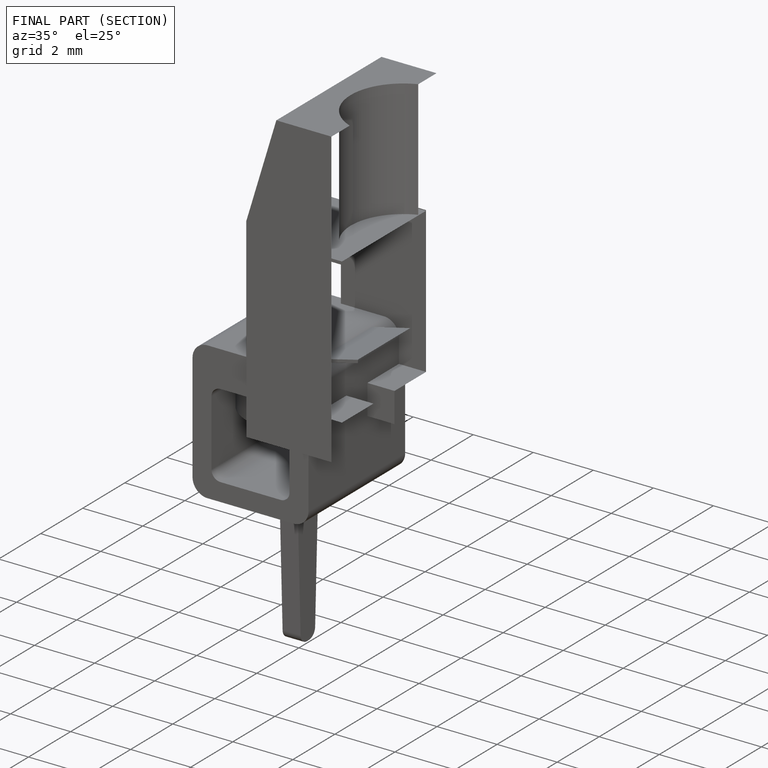
[diagram: finished part — half-section view (interior)]
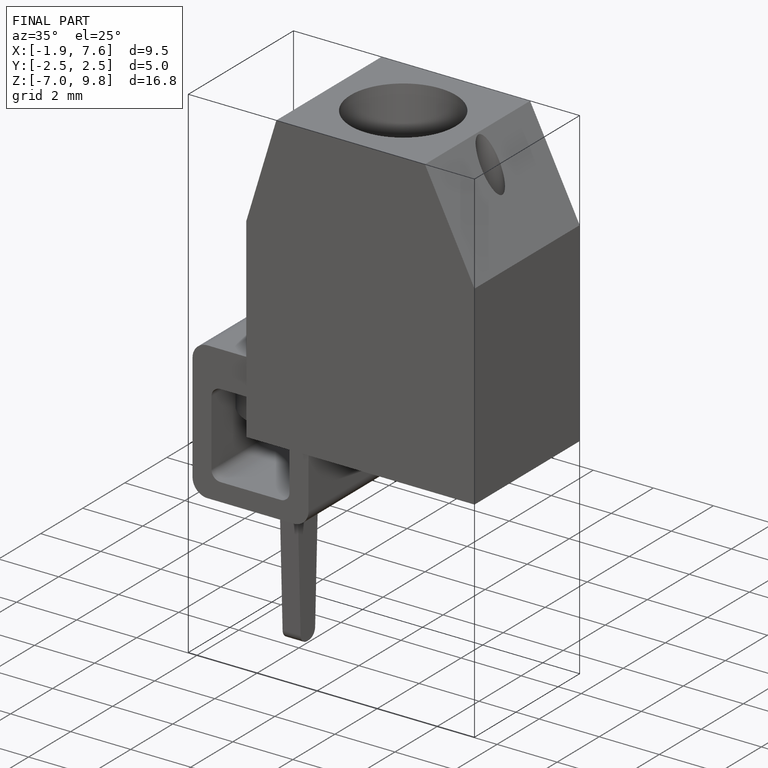
[diagram: finished part — iso view with bounding-box wireframe]
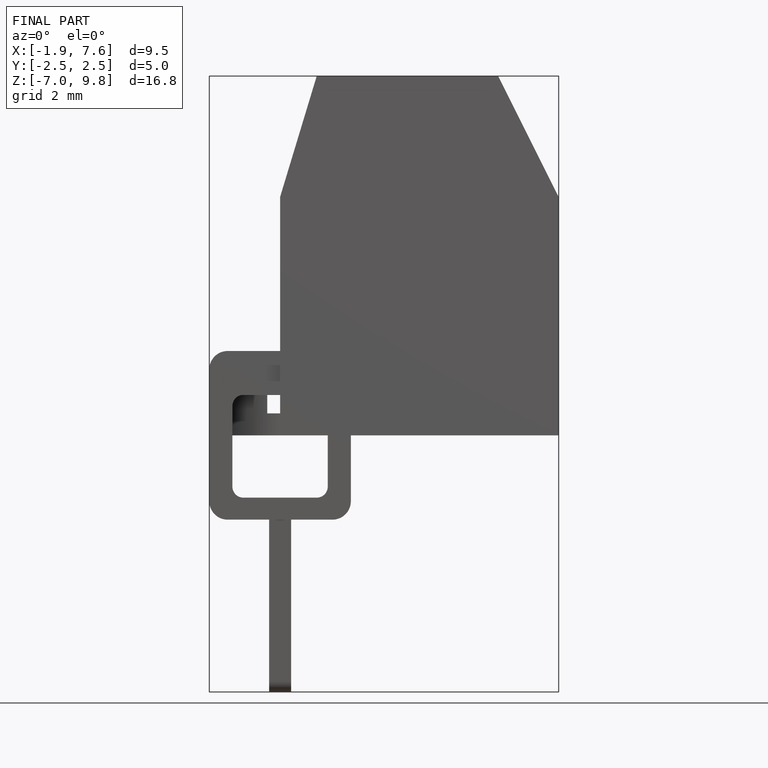
[diagram: finished part — front view with bounding-box wireframe]
